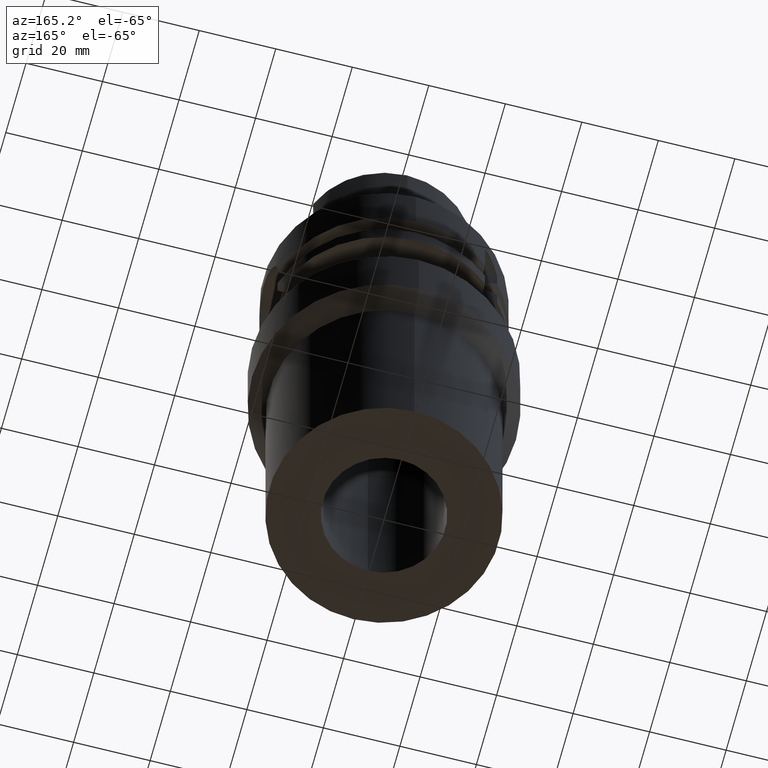
[diagram: clean part render]
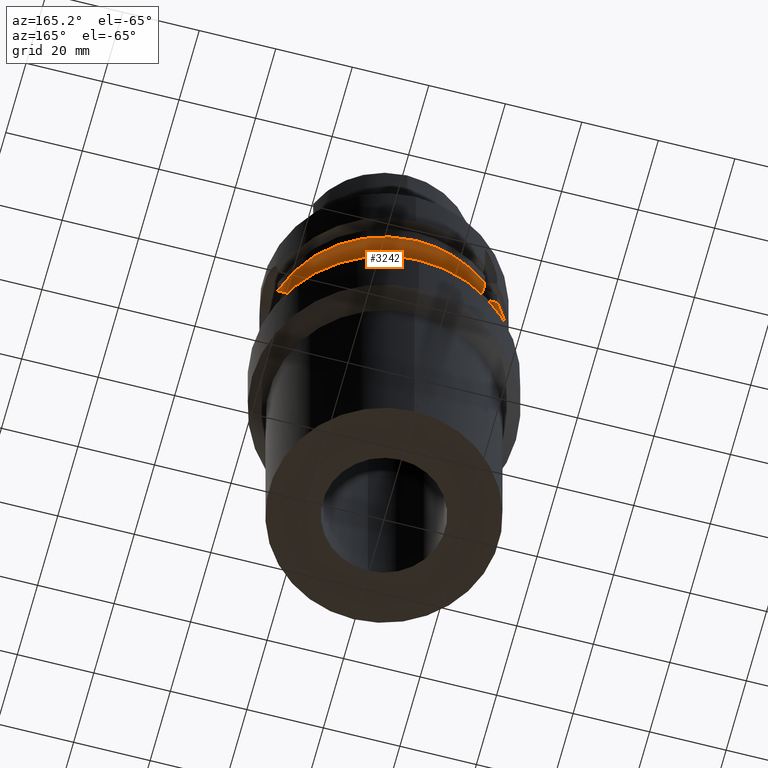
[diagram: same view with one face highlighted and labeled with its STEP entity id]
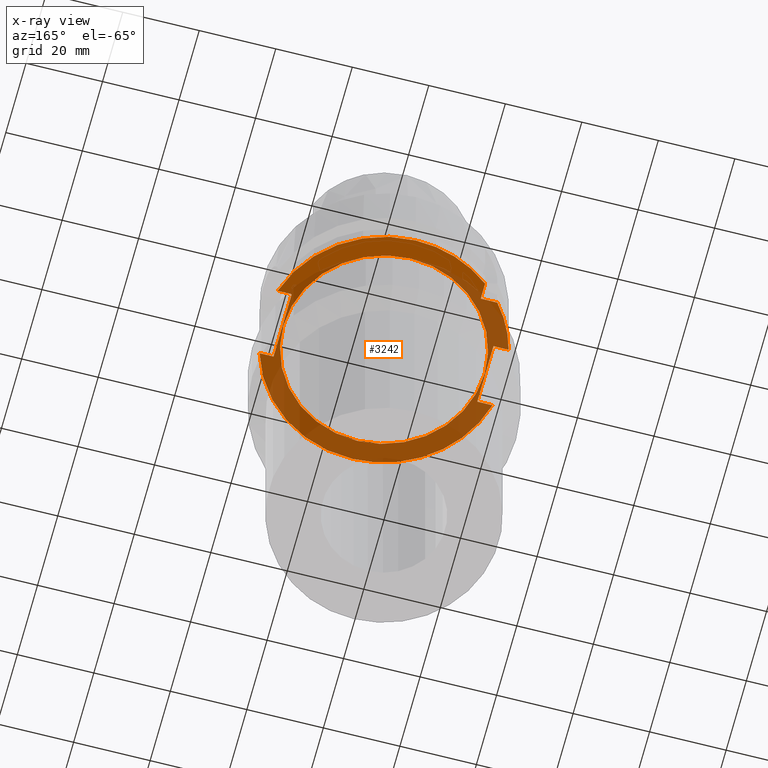
[diagram: x-ray of the same camera — body ghosted, the highlighted face saturated]
A machine part, auxiliary view. The second image highlights one B-rep face of the part: STEP entity #3242.
The next image is the same camera in x-ray: the body ghosted, the highlighted face saturated — about 67% of this face is hidden behind the body in this view.
In plain terms, the highlighted planar face has unit normal (0, 0, 1).
Its self-contained STEP definition (entity closure, byte-faithful):
#933=DIRECTION('',(0.E0,1.E0,0.E0));
#934=VECTOR('',#933,1.6E1);
#935=CARTESIAN_POINT('',(-2.65E1,-8.E0,-2.6E1));
#936=LINE('',#935,#934);
#970=DIRECTION('',(-1.E0,-1.540316790609E-13,0.E0));
#971=VECTOR('',#970,4.336187047278E0);
#972=CARTESIAN_POINT('',(-2.E1,2.E1,-2.6E1));
#973=LINE('',#972,#971);
#977=CARTESIAN_POINT('',(0.E0,0.E0,-2.6E1));
#978=DIRECTION('',(0.E0,0.E0,1.E0));
#979=DIRECTION('',(-7.725773665802E-1,6.349206349206E-1,0.E0));
#980=AXIS2_PLACEMENT_3D('',#977,#978,#979);
#985=DIRECTION('',(-1.E0,-8.686570378871E-14,0.E0));
#986=VECTOR('',#985,3.967195473163E0);
#987=CARTESIAN_POINT('',(-2.65E1,-8.E0,-2.6E1));
#988=LINE('',#987,#986);
#992=CARTESIAN_POINT('',(0.E0,0.E0,-2.6E1));
#993=DIRECTION('',(0.E0,0.E0,1.E0));
#994=DIRECTION('',(-9.672125547036E-1,-2.539682539683E-1,0.E0));
#995=AXIS2_PLACEMENT_3D('',#992,#993,#994);
#1000=CARTESIAN_POINT('',(0.E0,0.E0,-2.6E1));
#1001=DIRECTION('',(0.E0,0.E0,1.E0));
#1002=DIRECTION('',(0.E0,-1.E0,0.E0));
#1003=AXIS2_PLACEMENT_3D('',#1000,#1001,#1002);
#1008=DIRECTION('',(-1.E0,-6.889739586341E-14,0.E0));
#1009=VECTOR('',#1008,3.686917696248E0);
#1010=CARTESIAN_POINT('',(3.018691769625E1,-9.E0,-2.6E1));
#1011=LINE('',#1010,#1009);
#1015=DIRECTION('',(0.E0,1.E0,0.E0));
#1016=VECTOR('',#1015,1.8E1);
#1017=CARTESIAN_POINT('',(2.65E1,-9.E0,-2.6E1));
#1018=LINE('',#1017,#1016);
#1022=CARTESIAN_POINT('',(0.E0,0.E0,-2.6E1));
#1023=DIRECTION('',(0.E0,0.E0,1.E0));
#1024=DIRECTION('',(9.583148474999E-1,2.857142857143E-1,0.E0));
#1025=AXIS2_PLACEMENT_3D('',#1022,#1023,#1024);
#1030=CARTESIAN_POINT('',(0.E0,0.E0,-2.6E1));
#1031=DIRECTION('',(0.E0,0.E0,1.E0));
#1032=DIRECTION('',(0.E0,1.E0,0.E0));
#1033=AXIS2_PLACEMENT_3D('',#1030,#1031,#1032);
#1038=CARTESIAN_POINT('',(0.E0,0.E0,-2.6E1));
#1039=DIRECTION('',(0.E0,0.E0,-1.E0));
#1040=DIRECTION('',(0.E0,-1.E0,0.E0));
#1041=AXIS2_PLACEMENT_3D('',#1038,#1039,#1040);
#1046=CARTESIAN_POINT('',(0.E0,0.E0,-2.6E1));
#1047=DIRECTION('',(0.E0,0.E0,-1.E0));
#1048=DIRECTION('',(0.E0,1.E0,0.E0));
#1049=AXIS2_PLACEMENT_3D('',#1046,#1047,#1048);
#1054=DIRECTION('',(1.556703139446E-13,1.E0,0.E0));
#1055=VECTOR('',#1054,4.336187047278E0);
#1056=CARTESIAN_POINT('',(-2.E1,2.E1,-2.6E1));
#1057=LINE('',#1056,#1055);
#1075=DIRECTION('',(-1.E0,7.275179563200E-14,0.E0));
#1076=VECTOR('',#1075,3.686917696248E0);
#1077=CARTESIAN_POINT('',(3.018691769625E1,9.E0,-2.6E1));
#1078=LINE('',#1077,#1076);
#1543=DIRECTION('',(-1.E0,8.776122650818E-14,0.E0));
#1544=VECTOR('',#1543,3.967195473163E0);
#1545=CARTESIAN_POINT('',(-2.65E1,8.E0,-2.6E1));
#1546=LINE('',#1545,#1544);
#2450=CARTESIAN_POINT('',(0.E0,2.63E1,-2.6E1));
#2451=VERTEX_POINT('',#2450);
#2452=CARTESIAN_POINT('',(0.E0,-2.63E1,-2.6E1));
#2453=VERTEX_POINT('',#2452);
#2454=CARTESIAN_POINT('',(-2.E1,2.E1,-2.6E1));
#2455=CARTESIAN_POINT('',(-2.E1,2.433618704728E1,-2.6E1));
#2456=VERTEX_POINT('',#2454);
#2457=VERTEX_POINT('',#2455);
#2458=CARTESIAN_POINT('',(-2.433618704728E1,2.E1,-2.6E1));
#2459=VERTEX_POINT('',#2458);
#2460=CARTESIAN_POINT('',(-3.046719547316E1,8.E0,-2.6E1));
#2461=VERTEX_POINT('',#2460);
#2462=CARTESIAN_POINT('',(-2.65E1,8.E0,-2.6E1));
#2463=VERTEX_POINT('',#2462);
#2464=CARTESIAN_POINT('',(-2.65E1,-8.E0,-2.6E1));
#2465=VERTEX_POINT('',#2464);
#2466=CARTESIAN_POINT('',(-3.046719547316E1,-8.E0,-2.6E1));
#2467=VERTEX_POINT('',#2466);
#2468=CARTESIAN_POINT('',(-1.294568961206E-14,-3.15E1,-2.6E1));
#2469=CARTESIAN_POINT('',(3.018691769625E1,-9.E0,-2.6E1));
#2470=VERTEX_POINT('',#2468);
#2471=VERTEX_POINT('',#2469);
#2472=CARTESIAN_POINT('',(2.65E1,-9.E0,-2.6E1));
#2473=VERTEX_POINT('',#2472);
#2474=CARTESIAN_POINT('',(2.65E1,9.E0,-2.6E1));
#2475=VERTEX_POINT('',#2474);
#2476=CARTESIAN_POINT('',(3.018691769625E1,9.E0,-2.6E1));
#2477=VERTEX_POINT('',#2476);
#2478=CARTESIAN_POINT('',(1.065814103640E-14,3.15E1,-2.6E1));
#2479=VERTEX_POINT('',#2478);
#3204=CARTESIAN_POINT('',(0.E0,0.E0,-2.6E1));
#3205=DIRECTION('',(0.E0,0.E0,1.E0));
#3206=DIRECTION('',(0.E0,1.E0,0.E0));
#3207=AXIS2_PLACEMENT_3D('',#3204,#3205,#3206);
#3208=PLANE('',#3207);
#3210=ORIENTED_EDGE('',*,*,#3209,.F.);
#3212=ORIENTED_EDGE('',*,*,#3211,.T.);
#3214=ORIENTED_EDGE('',*,*,#3213,.T.);
#3216=ORIENTED_EDGE('',*,*,#3215,.F.);
#3217=ORIENTED_EDGE('',*,*,#3181,.F.);
#3219=ORIENTED_EDGE('',*,*,#3218,.T.);
#3221=ORIENTED_EDGE('',*,*,#3220,.T.);
#3223=ORIENTED_EDGE('',*,*,#3222,.T.);
#3225=ORIENTED_EDGE('',*,*,#3224,.T.);
#3227=ORIENTED_EDGE('',*,*,#3226,.T.);
#3229=ORIENTED_EDGE('',*,*,#3228,.F.);
#3231=ORIENTED_EDGE('',*,*,#3230,.T.);
#3233=ORIENTED_EDGE('',*,*,#3232,.T.);
#3234=EDGE_LOOP('',(#3210,#3212,#3214,#3216,#3217,#3219,#3221,#3223,#3225,#3227,
#3229,#3231,#3233));
#3235=FACE_OUTER_BOUND('',#3234,.F.);
#3237=ORIENTED_EDGE('',*,*,#3236,.T.);
#3239=ORIENTED_EDGE('',*,*,#3238,.T.);
#3240=EDGE_LOOP('',(#3237,#3239));
#3241=FACE_BOUND('',#3240,.F.);
#981=CIRCLE('',#980,3.15E1);
#996=CIRCLE('',#995,3.15E1);
#1004=CIRCLE('',#1003,3.15E1);
#1026=CIRCLE('',#1025,3.15E1);
#1034=CIRCLE('',#1033,3.15E1);
#1042=CIRCLE('',#1041,2.63E1);
#1050=CIRCLE('',#1049,2.63E1);
#3181=EDGE_CURVE('',#2465,#2463,#936,.T.);
#3209=EDGE_CURVE('',#2456,#2457,#1057,.T.);
#3211=EDGE_CURVE('',#2456,#2459,#973,.T.);
#3213=EDGE_CURVE('',#2459,#2461,#981,.T.);
#3215=EDGE_CURVE('',#2463,#2461,#1546,.T.);
#3218=EDGE_CURVE('',#2465,#2467,#988,.T.);
#3220=EDGE_CURVE('',#2467,#2470,#996,.T.);
#3222=EDGE_CURVE('',#2470,#2471,#1004,.T.);
#3224=EDGE_CURVE('',#2471,#2473,#1011,.T.);
#3226=EDGE_CURVE('',#2473,#2475,#1018,.T.);
#3228=EDGE_CURVE('',#2477,#2475,#1078,.T.);
#3230=EDGE_CURVE('',#2477,#2479,#1026,.T.);
#3232=EDGE_CURVE('',#2479,#2457,#1034,.T.);
#3236=EDGE_CURVE('',#2453,#2451,#1042,.T.);
#3238=EDGE_CURVE('',#2451,#2453,#1050,.T.);
#3242=ADVANCED_FACE('',(#3235,#3241),#3208,.F.);